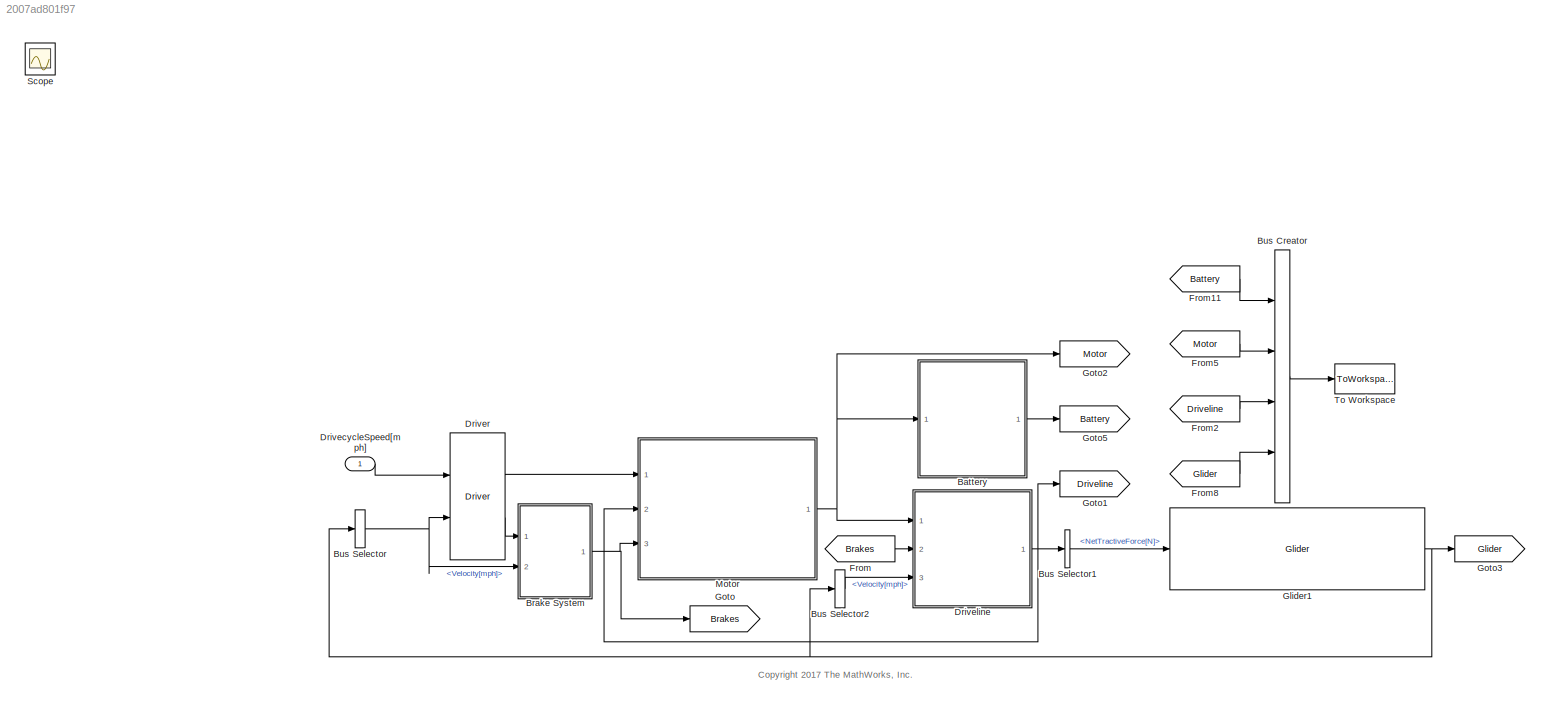
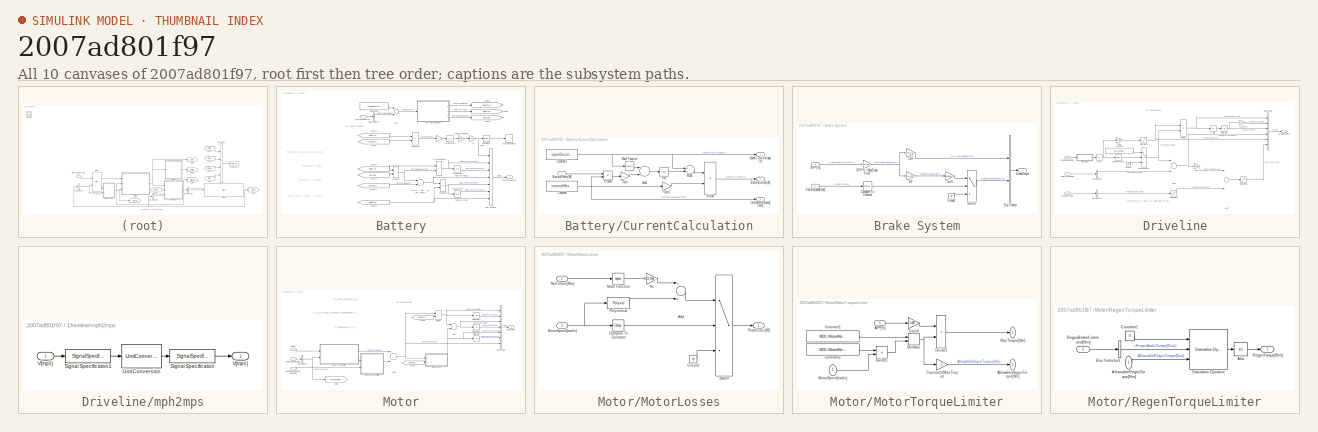
[diagram: thumbnail index - all 10 canvases of the model, root first then tree order]
MODEL slx_2007ad801f97
KIND model
CONFIG AbsTol = auto
CONFIG EnableMultiTasking = on
CONFIG FixedStep = .1
CONFIG MaxStep = auto
CONFIG MinStep = auto
CONFIG PostLoadFcn = addpath('ImagesBEV')\n\nBEVDir = pwd;\n\ncd ..\;\nSimulinkDir = pwd;\naddpath(SimulinkDir);\n\ncd(BEVDir);
CONFIG RelTol = 1e-3
CONFIG SampleTimeConstraint = Unconstrained
CONFIG Solver = ode4
CONFIG SolverName = ode4
CONFIG StartTime = 0.0
CONFIG StopFcn = MotorNetTorque = results.Motor.MotorNetTorque_Nm_;\nSOC = results.Battery.SOC___;\nBatteryPowerAtTerminals = results.Battery.BatteryPowerAtTerminals_W_;\nVehicleSpeed = results.Glider.Velocity_mph_;\n\nfigure\nscatter(VehicleSpeed.get.Data(:),MotorNetTorque.get.Data(:),'.')\ngrid on\nbox on\ntitle('Motor Torque vs. Vehicle Speed')\nxlabel('Vehicle Speed, V (mph)')\nylabel('Motor Torque, Tm (Nm)')\n\nfigure\nsca...<+360ch>
CONFIG StopTime = TimeUS06
WORKSPACE source: mxarray member
WORKSPACE AccessoryLoad = 600
WORKSPACE C_ref = 600
WORKSPACE DrCycles: object (value not decoded)
WORKSPACE K = 1.04716227018
WORKSPACE Kc_ref = 0.12
WORKSPACE Ki_ref = 0.01
WORKSPACE Kw_ref = 1.2e-05
WORKSPACE MDL: object (value not decoded)
WORKSPACE T_max = 500
WORKSPACE T_ref = 300
WORKSPACE TimeHWFET = 765
WORKSPACE TimeUDDS = 1372
WORKSPACE TimeUS06 = 596
WORKSPACE aeroDragCoeff = 0.38
WORKSPACE airDensity = 1.23
WORKSPACE energyCapacity = 12.6
WORKSPACE frontArea = 2.1
WORKSPACE gravity = 9.81
WORKSPACE inclinationAngle = 0
WORKSPACE inertialMassVeh = 2392
WORKSPACE initialSOC = 0.95
WORKSPACE internalResistance = 0.1
WORKSPACE massVeh = 2300
WORKSPACE openCircuitVoltage = 340
WORKSPACE rollingResistCoeff = 0.01
WORKSPACE w_max = 524
WORKSPACE w_ref = 834
WORKSPACE wheelRadius = 0.34
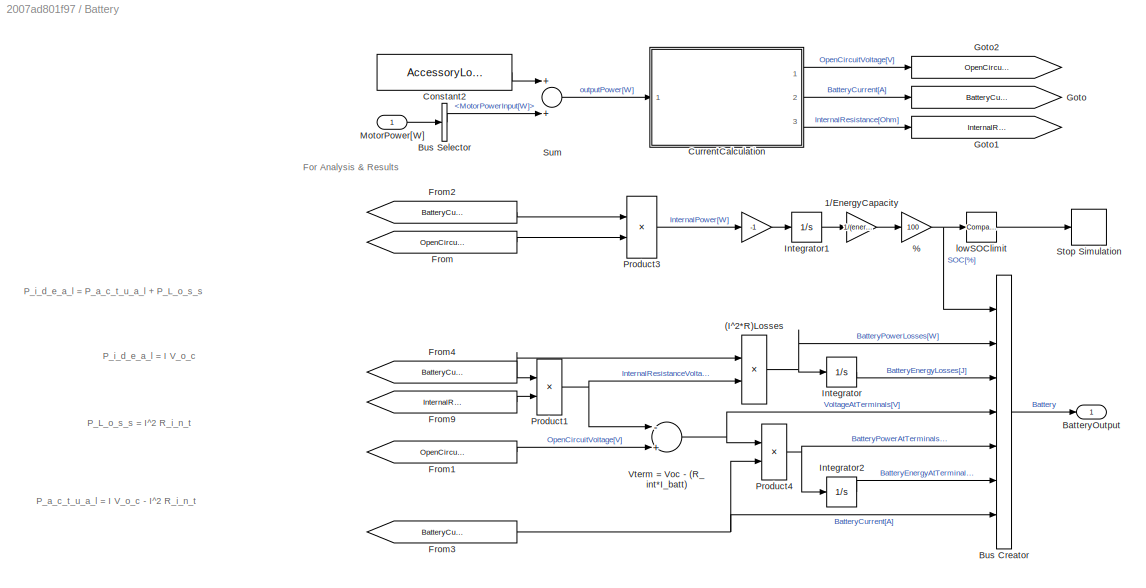
BLOCK [SubSystem] Battery
  Ports = [1, 1]
  RequestExecContextInheritance = off
BLOCK [Gain] Battery/ 
  Gain = -1
  OutDataTypeStr = Inherit: Inherit via internal rule
  ParamDataTypeStr = Inherit: Inherit via internal rule
  SaturateOnIntegerOverflow = off
BLOCK [Gain] Battery/%
  Gain = 100
  OutDataTypeStr = Inherit: Inherit via internal rule
  ParamDataTypeStr = Inherit: Inherit via internal rule
  SaturateOnIntegerOverflow = off
BLOCK [Product] Battery/(I^2*R)Losses
  InputSameDT = off
  OutDataTypeStr = Inherit: Inherit via internal rule
  Ports = [2, 1]
  SaturateOnIntegerOverflow = off
BLOCK [Gain] Battery/1//EnergyCapacity
  Gain = 1/(energyCapacity*3600*1000)
  OutDataTypeStr = Inherit: Inherit via internal rule
  ParamDataTypeStr = Inherit: Inherit via internal rule
  SaturateOnIntegerOverflow = off
BLOCK [Outport] Battery/BatteryOutput
  IconDisplay = Port number
  VectorParamsAs1DForOutWhenUnconnected = off
BLOCK [BusCreator] Battery/Bus Creator
  DisplayOption = bar
  InheritFromInputs = on
  Inputs = 7
  Ports = [7, 1]
BLOCK [BusSelector] Battery/Bus Selector
  OutputAsBus = off
  OutputSignals = MotorPowerInput[W]
  Ports = [1, 1]
BLOCK [Constant] Battery/Constant2
  Value = AccessoryLoad
BLOCK [SubSystem] Battery/CurrentCalculation
  Ports = [1, 3]
  RequestExecContextInheritance = off
BLOCK [Sum] Battery/CurrentCalculation/Add
  InputSameDT = off
  Inputs = +-
  OutDataTypeStr = Inherit: Inherit via internal rule
  Ports = [2, 1]
  SaturateOnIntegerOverflow = off
BLOCK [Sum] Battery/CurrentCalculation/Add1
  InputSameDT = off
  Inputs = +-
  OutDataTypeStr = Inherit: Inherit via internal rule
  Ports = [2, 1]
  SaturateOnIntegerOverflow = off
BLOCK [Outport] Battery/CurrentCalculation/BatteryCurrent[A]
  IconDisplay = Port number
  Port = 2
  VectorParamsAs1DForOutWhenUnconnected = off
BLOCK [Inport] Battery/CurrentCalculation/BatteryPower[W]
  IconDisplay = Port number
BLOCK [Constant] Battery/CurrentCalculation/Constant
  Value = internalResistance
BLOCK [Constant] Battery/CurrentCalculation/Constant1
  Value = openCircuitVoltage
BLOCK [Product] Battery/CurrentCalculation/Divide
  InputSameDT = off
  Inputs = */
  OutDataTypeStr = Inherit: Inherit via internal rule
  Ports = [2, 1]
  RndMeth = Floor
  SaturateOnIntegerOverflow = off
BLOCK [Gain] Battery/CurrentCalculation/Gain
  Gain = 4
  OutDataTypeStr = Inherit: Inherit via internal rule
  ParamDataTypeStr = Inherit: Inherit via internal rule
  SaturateOnIntegerOverflow = off
BLOCK [Gain] Battery/CurrentCalculation/Gain1
  Gain = 2
  OutDataTypeStr = Inherit: Inherit via internal rule
  ParamDataTypeStr = Inherit: Inherit via internal rule
  SaturateOnIntegerOverflow = off
BLOCK [Outport] Battery/CurrentCalculation/InternalResistance[Ohm]
  IconDisplay = Port number
  Port = 3
  VectorParamsAs1DForOutWhenUnconnected = off
BLOCK [Math] Battery/CurrentCalculation/Math Function
  Operator = square
  Ports = [1, 1]
BLOCK [Outport] Battery/CurrentCalculation/OpenCircuitVoltage[V]
  IconDisplay = Port number
  VectorParamsAs1DForOutWhenUnconnected = off
BLOCK [Product] Battery/CurrentCalculation/Product
  InputSameDT = off
  OutDataTypeStr = Inherit: Inherit via internal rule
  Ports = [2, 1]
  SaturateOnIntegerOverflow = off
BLOCK [Sqrt] Battery/CurrentCalculation/Sqrt
BLOCK [From] Battery/From
  GotoTag = OpenCircuitVoltage_V
BLOCK [From] Battery/From1
  GotoTag = OpenCircuitVoltage_V
BLOCK [From] Battery/From2
  GotoTag = BatteryCurrent_A
BLOCK [From] Battery/From3
  GotoTag = BatteryCurrent_A
BLOCK [From] Battery/From4
  GotoTag = BatteryCurrent_A
BLOCK [From] Battery/From9
  GotoTag = InternalResistance_Ohm
BLOCK [Goto] Battery/Goto
  GotoTag = BatteryCurrent_A
BLOCK [Goto] Battery/Goto1
  GotoTag = InternalResistance_Ohm
BLOCK [Goto] Battery/Goto2
  GotoTag = OpenCircuitVoltage_V
BLOCK [Integrator] Battery/Integrator
  Ports = [1, 1]
  ZeroCross = off
BLOCK [Integrator] Battery/Integrator1
  InitialCondition = energyCapacity*3600*1000*initialSOC
  Ports = [1, 1]
  ZeroCross = off
BLOCK [Integrator] Battery/Integrator2
  Ports = [1, 1]
BLOCK [Inport] Battery/MotorPower[W]
  IconDisplay = Port number
BLOCK [Product] Battery/Product1
  InputSameDT = off
  OutDataTypeStr = Inherit: Inherit via internal rule
  Ports = [2, 1]
  SaturateOnIntegerOverflow = off
BLOCK [Product] Battery/Product3
  InputSameDT = off
  OutDataTypeStr = Inherit: Inherit via internal rule
  Ports = [2, 1]
  SaturateOnIntegerOverflow = off
BLOCK [Product] Battery/Product4
  InputSameDT = off
  OutDataTypeStr = Inherit: Inherit via internal rule
  Ports = [2, 1]
  SaturateOnIntegerOverflow = off
BLOCK [Stop] Battery/Stop Simulation
BLOCK [Sum] Battery/Sum
  InputSameDT = off
  OutDataTypeStr = Inherit: Inherit via internal rule
  Ports = [2, 1]
  SaturateOnIntegerOverflow = off
BLOCK [Sum] Battery/Vterm = Voc - (R_int*I_batt)
  InputSameDT = off
  Inputs = -+
  OutDataTypeStr = Inherit: Inherit via internal rule
  Ports = [2, 1]
  SaturateOnIntegerOverflow = off
BLOCK [Reference] Battery/lowSOClimit  REF=simulink/Logic and Bit
Operations/Compare
To Constant
  Ports = [1, 1]
  SourceBlock = simulink/Logic and Bit\nOperations/Compare\nTo Constant
  SourceProductBaseCode = SL
  SourceProductName = Simulink
  SourceType = Compare To Constant
BLOCK [SubSystem] Brake System
  Ports = [2, 1]
  RequestExecContextInheritance = off
BLOCK [Gain] Brake System/1-BF
  Gain = 1-MDL.BrakeSys.RegenFraction
  OutDataTypeStr = Inherit: Inherit via internal rule
  ParamDataTypeStr = Inherit: Inherit via internal rule
  SaturateOnIntegerOverflow = off
BLOCK [Gain] Brake System/BF
  Gain = MDL.BrakeSys.RegenFraction
  OutDataTypeStr = Inherit: Inherit via internal rule
  ParamDataTypeStr = Inherit: Inherit via internal rule
  SaturateOnIntegerOverflow = off
BLOCK [Gain] Brake System/BPP% * MaxBrakeForce
  Gain = MDL.BrakeSys.MaxBrakeForce/100
  OutDataTypeStr = Inherit: Inherit via internal rule
  ParamDataTypeStr = Inherit: Inherit via internal rule
  SaturateOnIntegerOverflow = off
BLOCK [Inport] Brake System/BPP[%]
  IconDisplay = Port number
BLOCK [Outport] Brake System/BrakeOutput
  IconDisplay = Port number
  VectorParamsAs1DForOutWhenUnconnected = off
BLOCK [BusCreator] Brake System/Bus Creator
  DisplayOption = bar
  InheritFromInputs = on
  Inputs = 2
  Ports = [2, 1]
BLOCK [Reference] Brake System/Compare To Constant  REF=simulink/Logic and Bit
Operations/Compare
To Constant
  Ports = [1, 1]
  SourceBlock = simulink/Logic and Bit\nOperations/Compare\nTo Constant
  SourceProductBaseCode = SL
  SourceProductName = Simulink
  SourceType = Compare To Constant
BLOCK [Ground] Brake System/Ground
BLOCK [Switch] Brake System/Switch
  Criteria = u2 ~= 0
  InputSameDT = off
  SaturateOnIntegerOverflow = off
BLOCK [Inport] Brake System/VehicleSpeed[mph]
  IconDisplay = Port number
  Port = 2
BLOCK [Gain] Brake System/rw//G
  Gain = wheelRadius/MDL.DrivelineModel.G
  OutDataTypeStr = Inherit: Inherit via internal rule
  ParamDataTypeStr = Inherit: Inherit via internal rule
  SaturateOnIntegerOverflow = off
BLOCK [BusCreator] Bus Creator
  DisplayOption = bar
  InheritFromInputs = on
  Inputs = 4
  Ports = [4, 1]
BLOCK [BusSelector] Bus Selector
  OutputAsBus = off
  OutputSignals = Velocity[mph]
  Ports = [1, 1]
BLOCK [BusSelector] Bus Selector1
  OutputAsBus = off
  OutputSignals = NetTractiveForce[N]
  Ports = [1, 1]
BLOCK [BusSelector] Bus Selector2
  OutputAsBus = off
  OutputSignals = Velocity[mph]
  Ports = [1, 1]
BLOCK [Inport] DrivecycleSpeed[mph]
  IconDisplay = Port number
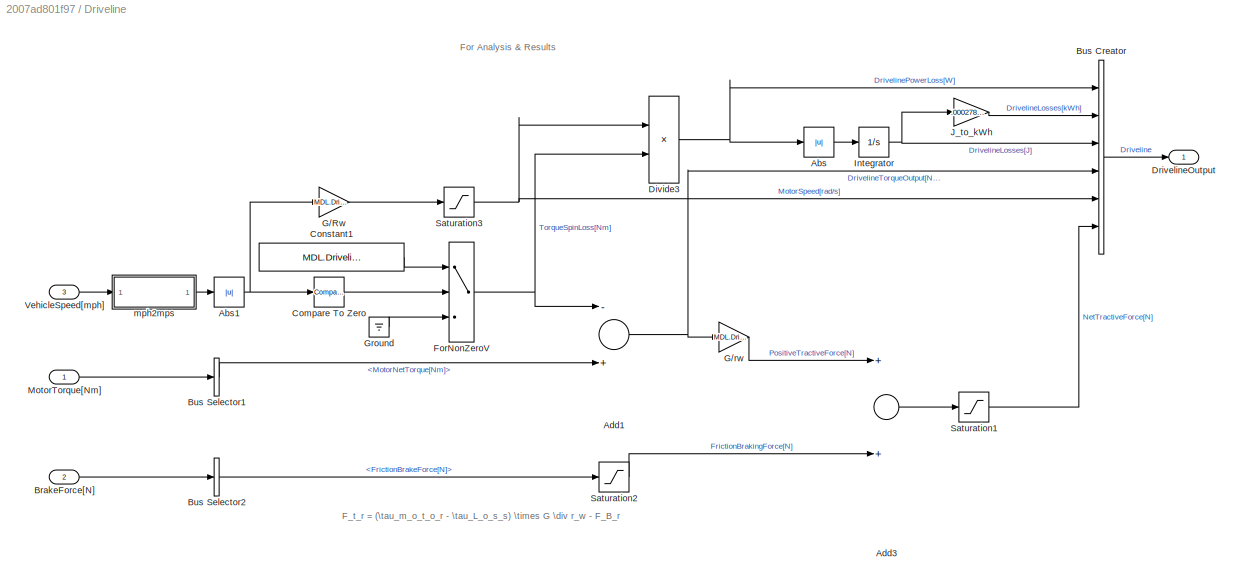
BLOCK [SubSystem] Driveline
  Ports = [3, 1]
  RequestExecContextInheritance = off
BLOCK [Abs] Driveline/Abs
  SaturateOnIntegerOverflow = off
  ZeroCross = off
BLOCK [Abs] Driveline/Abs1
  SaturateOnIntegerOverflow = off
  ZeroCross = off
BLOCK [Sum] Driveline/Add1
  InputSameDT = off
  Inputs = -+
  OutDataTypeStr = Inherit: Inherit via internal rule
  Ports = [2, 1]
  SaturateOnIntegerOverflow = off
BLOCK [Sum] Driveline/Add3
  InputSameDT = off
  OutDataTypeStr = Inherit: Inherit via internal rule
  Ports = [2, 1]
  SaturateOnIntegerOverflow = off
BLOCK [Inport] Driveline/BrakeForce[N]
  IconDisplay = Port number
  Port = 2
BLOCK [BusCreator] Driveline/Bus Creator
  DisplayOption = bar
  InheritFromInputs = on
  Inputs = 6
  Ports = [6, 1]
BLOCK [BusSelector] Driveline/Bus Selector1
  OutputAsBus = off
  OutputSignals = MotorNetTorque[Nm]
  Ports = [1, 1]
BLOCK [BusSelector] Driveline/Bus Selector2
  OutputAsBus = off
  OutputSignals = FrictionBrakeForce[N]
  Ports = [1, 1]
BLOCK [Reference] Driveline/Compare To Zero  REF=simulink/Logic and Bit
Operations/Compare
To Zero
  Ports = [1, 1]
  SourceBlock = simulink/Logic and Bit\nOperations/Compare\nTo Zero
  SourceProductBaseCode = SL
  SourceProductName = Simulink
  SourceType = Compare To Zero
BLOCK [Constant] Driveline/Constant1
  Value = MDL.DrivelineModel.Spinloss
BLOCK [Product] Driveline/Divide3
  InputSameDT = off
  Inputs = **
  OutDataTypeStr = Inherit: Inherit via internal rule
  Ports = [2, 1]
  RndMeth = Floor
  SaturateOnIntegerOverflow = off
BLOCK [Outport] Driveline/DrivelineOutput
  IconDisplay = Port number
  VectorParamsAs1DForOutWhenUnconnected = off
BLOCK [Switch] Driveline/ForNonZeroV
  Criteria = u2 ~= 0
  InputSameDT = off
  SaturateOnIntegerOverflow = off
  ZeroCross = off
BLOCK [Gain] Driveline/G//Rw
  Gain = MDL.DrivelineModel.G/wheelRadius
  OutDataTypeStr = Inherit: Inherit via internal rule
  ParamDataTypeStr = Inherit: Inherit via internal rule
  SaturateOnIntegerOverflow = off
BLOCK [Gain] Driveline/G//rw
  Gain = MDL.DrivelineModel.G/wheelRadius
  OutDataTypeStr = Inherit: Inherit via internal rule
  ParamDataTypeStr = Inherit: Inherit via internal rule
  SaturateOnIntegerOverflow = off
BLOCK [Ground] Driveline/Ground
BLOCK [Integrator] Driveline/Integrator
  Ports = [1, 1]
  ZeroCross = off
BLOCK [Gain] Driveline/J_to_kWh
  Gain = .000278/1000
  OutDataTypeStr = Inherit: Inherit via internal rule
  ParamDataTypeStr = Inherit: Inherit via internal rule
  SaturateOnIntegerOverflow = off
BLOCK [Inport] Driveline/MotorTorque[Nm]
  IconDisplay = Port number
BLOCK [Saturate] Driveline/Saturation1
  InputPortMap = u0
  LowerLimit = -10000
  Ports = [1, 1]
  UpperLimit = 5000
  ZeroCross = off
BLOCK [Saturate] Driveline/Saturation2
  InputPortMap = u0
  LowerLimit = -10000
  Ports = [1, 1]
  UpperLimit = 0
  ZeroCross = off
BLOCK [Saturate] Driveline/Saturation3
  InputPortMap = u0
  LowerLimit = 0.00001
  Ports = [1, 1]
  UpperLimit = inf
  ZeroCross = off
BLOCK [Inport] Driveline/VehicleSpeed[mph]
  IconDisplay = Port number
  Port = 3
BLOCK [SubSystem] Driveline/mph2mps
  Ports = [1, 1]
  RequestExecContextInheritance = off
BLOCK [SignalSpecification] Driveline/mph2mps/Signal Specification
  Unit = m/s
BLOCK [SignalSpecification] Driveline/mph2mps/Signal Specification1
  Unit = mile/hr
BLOCK [UnitConversion] Driveline/mph2mps/Unit Conversion
BLOCK [Inport] Driveline/mph2mps/V[mph]
  IconDisplay = Port number
BLOCK [Outport] Driveline/mph2mps/V[mps]
  IconDisplay = Port number
  VectorParamsAs1DForOutWhenUnconnected = off
BLOCK [Reference] Driver  REF=Driver_Glider_Library/Driver
  Ports = [2, 2]
  SourceBlock = Driver_Glider_Library/Driver
BLOCK [From] From
  GotoTag = Brakes
BLOCK [From] From11
  GotoTag = Battery
BLOCK [From] From2
  GotoTag = Driveline
BLOCK [From] From5
  GotoTag = Motor
BLOCK [From] From8
  GotoTag = Glider
BLOCK [Reference] Glider1  REF=Driver_Glider_Library/Glider
  Ports = [1, 1]
  SourceBlock = Driver_Glider_Library/Glider
BLOCK [Goto] Goto
  GotoTag = Brakes
BLOCK [Goto] Goto1
  GotoTag = Driveline
BLOCK [Goto] Goto2
  GotoTag = Motor
BLOCK [Goto] Goto3
  GotoTag = Glider
BLOCK [Goto] Goto5
  GotoTag = Battery
BLOCK [SubSystem] Motor
  Ports = [3, 1]
  RequestExecContextInheritance = off
BLOCK [Inport] Motor/APP[%]
  IconDisplay = Port number
BLOCK [Sum] Motor/Add2
  InputSameDT = off
  Inputs = +-
  OutDataTypeStr = Inherit: Inherit via internal rule
  Ports = [2, 1]
  SaturateOnIntegerOverflow = off
BLOCK [Sum] Motor/Add3
  InputSameDT = off
  OutDataTypeStr = Inherit: Inherit via internal rule
  Ports = [2, 1]
  SaturateOnIntegerOverflow = off
BLOCK [BusCreator] Motor/Bus Creator
  DisplayOption = bar
  InheritFromInputs = on
  Inputs = 7
  Ports = [7, 1]
BLOCK [BusSelector] Motor/Bus Selector
  OutputAsBus = off
  OutputSignals = MotorSpeed[rad/s]
  Ports = [1, 1]
BLOCK [Product] Motor/Divide4
  InputSameDT = off
  Inputs = **
  OutDataTypeStr = Inherit: Inherit via internal rule
  Ports = [2, 1]
  RndMeth = Floor
  SaturateOnIntegerOverflow = off
BLOCK [From] Motor/From
  GotoTag = MotorSpeed_radps
BLOCK [From] Motor/From1
  GotoTag = MotorSpeed_radps
BLOCK [Goto] Motor/Goto
  GotoTag = MotorSpeed_radps
BLOCK [Integrator] Motor/Integrator
  Ports = [1, 1]
  ZeroCross = off
BLOCK [Integrator] Motor/Integrator1
  Ports = [1, 1]
  ZeroCross = off
BLOCK [Integrator] Motor/Integrator2
  Ports = [1, 1]
  ZeroCross = off
BLOCK [SubSystem] Motor/MotorLosses
  Ports = [2, 1]
  RequestExecContextInheritance = off
BLOCK [Sum] Motor/MotorLosses/Add
  InputSameDT = off
  OutDataTypeStr = Inherit: Inherit via internal rule
  Ports = [2, 1]
  SaturateOnIntegerOverflow = off
BLOCK [Reference] Motor/MotorLosses/Compare To Constant  REF=simulink/Logic and Bit
Operations/Compare
To Constant
  Ports = [1, 1]
  SourceBlock = simulink/Logic and Bit\nOperations/Compare\nTo Constant
  SourceProductBaseCode = SL
  SourceProductName = Simulink
  SourceType = Compare To Constant
BLOCK [Ground] Motor/MotorLosses/Ground
BLOCK [Gain] Motor/MotorLosses/Kc
  Gain = MDL.MotorModel.kc
  OutDataTypeStr = Inherit: Inherit via internal rule
  ParamDataTypeStr = Inherit: Inherit via internal rule
  SaturateOnIntegerOverflow = off
BLOCK [Math] Motor/MotorLosses/Math Function
  Operator = square
  Ports = [1, 1]
BLOCK [Inport] Motor/MotorLosses/MotorSpeed[rad//s]
  IconDisplay = Port number
  Port = 2
BLOCK [Inport] Motor/MotorLosses/NetTorque[Nm]
  IconDisplay = Port number
BLOCK [Polyval] Motor/MotorLosses/Polynomial
  Coefs = [MDL.MotorModel.kw , 0 ,MDL.MotorModel.ki, MDL.MotorModel.C]
BLOCK [Outport] Motor/MotorLosses/PowerLoss[W]
  IconDisplay = Port number
  VectorParamsAs1DForOutWhenUnconnected = off
BLOCK [Switch] Motor/MotorLosses/Switch
  Criteria = u2 ~= 0
  InputSameDT = off
  SaturateOnIntegerOverflow = off
  ZeroCross = off
BLOCK [Outport] Motor/MotorOutput
  IconDisplay = Port number
  VectorParamsAs1DForOutWhenUnconnected = off
BLOCK [Inport] Motor/MotorSpeed[rad//s]
  IconDisplay = Port number
  Port = 2
BLOCK [SubSystem] Motor/MotorTorqueLimiter
  Ports = [2, 2]
  RequestExecContextInheritance = off
BLOCK [Inport] Motor/MotorTorqueLimiter/APP[%]
  IconDisplay = Port number
BLOCK [Outport] Motor/MotorTorqueLimiter/AllowableRegenTorque[Nm]
  IconDisplay = Port number
  Port = 2
  VectorParamsAs1DForOutWhenUnconnected = off
BLOCK [Constant] Motor/MotorTorqueLimiter/Constant1
  Value = MDL.MotorModel.MaxTrqOut
BLOCK [Constant] Motor/MotorTorqueLimiter/Constant2
  Value = MDL.MotorModel.MaxPwrOut
BLOCK [Product] Motor/MotorTorqueLimiter/Divide1
  InputSameDT = off
  Inputs = */
  OutDataTypeStr = Inherit: Inherit via internal rule
  Ports = [2, 1]
  RndMeth = Floor
  SaturateOnIntegerOverflow = off
BLOCK [Product] Motor/MotorTorqueLimiter/Divide3
  InputSameDT = off
  Inputs = **
  OutDataTypeStr = Inherit: Inherit via internal rule
  Ports = [2, 1]
  RndMeth = Floor
  SaturateOnIntegerOverflow = off
BLOCK [Gain] Motor/MotorTorqueLimiter/FractionOfMaxTorque
  Gain = -.5
  OutDataTypeStr = Inherit: Inherit via internal rule
  ParamDataTypeStr = Inherit: Inherit via internal rule
  SaturateOnIntegerOverflow = off
BLOCK [Gain] Motor/MotorTorqueLimiter/Gain4
  Gain = 1/100
  OutDataTypeStr = Inherit: Inherit via internal rule
  ParamDataTypeStr = Inherit: Inherit via internal rule
  SaturateOnIntegerOverflow = off
BLOCK [Outport] Motor/MotorTorqueLimiter/MaxTorque[Nm]
  IconDisplay = Port number
  VectorParamsAs1DForOutWhenUnconnected = off
BLOCK [MinMax] Motor/MotorTorqueLimiter/MinMax
  InputSameDT = off
  Inputs = 2
  Ports = [2, 1]
  SaturateOnIntegerOverflow = off
BLOCK [Inport] Motor/MotorTorqueLimiter/MotorSpeed[rad//s]
  IconDisplay = Port number
  Port = 2
BLOCK [Inport] Motor/RegenBrakingCommand[Nm]
  IconDisplay = Port number
  Port = 3
BLOCK [SubSystem] Motor/RegenTorqueLimiter
  Ports = [2, 1]
  RequestExecContextInheritance = off
BLOCK [Abs] Motor/RegenTorqueLimiter/Abs
  SaturateOnIntegerOverflow = off
BLOCK [Inport] Motor/RegenTorqueLimiter/AllowableRegenTorque[Nm]
  IconDisplay = Port number
BLOCK [BusSelector] Motor/RegenTorqueLimiter/Bus Selector1
  OutputAsBus = off
  OutputSignals = RegenBrakeTorque[Nm]
  Ports = [1, 1]
BLOCK [Constant] Motor/RegenTorqueLimiter/Constant1
  Value = 0
BLOCK [Inport] Motor/RegenTorqueLimiter/RegenBrakeCommand[Nm]
  IconDisplay = Port number
  Port = 2
BLOCK [Outport] Motor/RegenTorqueLimiter/RegenTorque[Nm]
  IconDisplay = Port number
  VectorParamsAs1DForOutWhenUnconnected = off
BLOCK [Reference] Motor/RegenTorqueLimiter/Saturation Dynamic  REF=simulink/Discontinuities/Saturation
Dynamic
  Ports = [3, 1]
  SourceBlock = simulink/Discontinuities/Saturation\nDynamic
  SourceProductBaseCode = SL
  SourceProductName = Simulink
  SourceType = Saturation Dynamic
BLOCK [Scope] Scope
  Floating = off
  IOType = viewer
  NumInputPorts = 1
  Ports = []
  ScopeSpecificationString = Simulink.scopes.TimeScopeBlockCfg('CurrentConfiguration', extmgr.ConfigurationSet(extmgr.Configuration('Core','General UI',true),extmgr.Configuration('Core','Source UI',true),extmgr.Configuration('Sources','WiredSimulink',true),extmgr.Configuration('Visuals','Time Domain',true,'SerializedDisplays',{struct('MinYLimReal','-10.07672','MaxYLimReal','90.47015','YLabelReal','','MinYLimMag','0.00000','Ma...<+1439ch>
BLOCK [ToWorkspace] To Workspace
  FixptAsFi = on
  MaxDataPoints = inf
  Ports = [1]
  SampleTime = -1
  SaveFormat = Timeseries
  VariableName = results
ANNOTATION (root): <copyright redacted>
ANNOTATION Battery: P_L_o_s_s = I^2 R_i_n_t
ANNOTATION Battery: For Analysis & Results
ANNOTATION Battery: P_a_c_t_u_a_l = I V_o_c - I^2 R_i_n_t
ANNOTATION Battery: P_i_d_e_a_l = I V_o_c
ANNOTATION Battery: P_i_d_e_a_l = P_a_c_t_u_a_l + P_L_o_s_s
ANNOTATION Driveline: F_t_r = (\tau_m_o_t_o_r - \tau_L_o_s_s) \times G \div r_w - F_B_r
ANNOTATION Driveline: For Analysis & Results
ANNOTATION Motor: For Analysis & Results
ANNOTATION Motor: P_L_o_s_s = k_c \tau ^2 + k_i \omega + k_\omega \omega ^3 + C
ANNOTATION Motor: P_i_n = \tau \omega + P_L_o_s_s
ANNOTATION Motor: P_m_o_t = \tau_m_o_t \omega_m_o_t
LINE Battery/ :1 -> Battery/Integrator1:1
NET Battery/%:1 -> Battery/Bus Creator:1, Battery/lowSOClimit:1
NET Battery/(I^2*R)Losses:1 -> Battery/Bus Creator:2, Battery/Integrator:1
LINE Battery/1//EnergyCapacity:1 -> Battery/%:1
LINE Battery/Bus Creator:1 -> Battery/BatteryOutput:1
LINE Battery/Bus Selector:1 -> Battery/Sum:2
LINE Battery/Constant2:1 -> Battery/Sum:1
LINE Battery/CurrentCalculation/Add1:1 -> Battery/CurrentCalculation/Divide:1
LINE Battery/CurrentCalculation/Add:1 -> Battery/CurrentCalculation/Sqrt:1
LINE Battery/CurrentCalculation/BatteryPower[W]:1 -> Battery/CurrentCalculation/Product:1
NET Battery/CurrentCalculation/Constant1:1 -> Battery/CurrentCalculation/Add1:1, Battery/CurrentCalculation/Math Function:1, Battery/CurrentCalculation/OpenCircuitVoltage[V]:1
NET Battery/CurrentCalculation/Constant:1 -> Battery/CurrentCalculation/Gain1:1, Battery/CurrentCalculation/InternalResistance[Ohm]:1, Battery/CurrentCalculation/Product:2
LINE Battery/CurrentCalculation/Divide:1 -> Battery/CurrentCalculation/BatteryCurrent[A]:1
LINE Battery/CurrentCalculation/Gain1:1 -> Battery/CurrentCalculation/Divide:2
LINE Battery/CurrentCalculation/Gain:1 -> Battery/CurrentCalculation/Add:2
LINE Battery/CurrentCalculation/Math Function:1 -> Battery/CurrentCalculation/Add:1
LINE Battery/CurrentCalculation/Product:1 -> Battery/CurrentCalculation/Gain:1
LINE Battery/CurrentCalculation/Sqrt:1 -> Battery/CurrentCalculation/Add1:2
LINE Battery/CurrentCalculation:1 -> Battery/Goto2:1
LINE Battery/CurrentCalculation:2 -> Battery/Goto:1
LINE Battery/CurrentCalculation:3 -> Battery/Goto1:1
LINE Battery/From1:1 -> Battery/Vterm = Voc - (R_int*I_batt):2
LINE Battery/From2:1 -> Battery/Product3:1
NET Battery/From3:1 -> Battery/Bus Creator:7, Battery/Product4:2
NET Battery/From4:1 -> Battery/(I^2*R)Losses:1, Battery/Product1:1
LINE Battery/From9:1 -> Battery/Product1:2
LINE Battery/From:1 -> Battery/Product3:2
LINE Battery/Integrator1:1 -> Battery/1//EnergyCapacity:1
LINE Battery/Integrator2:1 -> Battery/Bus Creator:6
LINE Battery/Integrator:1 -> Battery/Bus Creator:3
LINE Battery/MotorPower[W]:1 -> Battery/Bus Selector:1
NET Battery/Product1:1 -> Battery/(I^2*R)Losses:2, Battery/Vterm = Voc - (R_int*I_batt):1
LINE Battery/Product3:1 -> Battery/ :1
NET Battery/Product4:1 -> Battery/Bus Creator:5, Battery/Integrator2:1
LINE Battery/Sum:1 -> Battery/CurrentCalculation:1
NET Battery/Vterm = Voc - (R_int*I_batt):1 -> Battery/Bus Creator:4, Battery/Product4:1
LINE Battery/lowSOClimit:1 -> Battery/Stop Simulation:1
LINE Battery:1 -> Goto5:1
LINE Brake System/1-BF:1 -> Brake System/Bus Creator:1
LINE Brake System/BF:1 -> Brake System/rw//G:1
NET Brake System/BPP% * MaxBrakeForce:1 -> Brake System/1-BF:1, Brake System/BF:1
LINE Brake System/BPP[%]:1 -> Brake System/BPP% * MaxBrakeForce:1
LINE Brake System/Bus Creator:1 -> Brake System/BrakeOutput:1
LINE Brake System/Compare To Constant:1 -> Brake System/Switch:2
LINE Brake System/Ground:1 -> Brake System/Switch:3
LINE Brake System/Switch:1 -> Brake System/Bus Creator:2
LINE Brake System/VehicleSpeed[mph]:1 -> Brake System/Compare To Constant:1
LINE Brake System/rw//G:1 -> Brake System/Switch:1
NET Brake System:1 -> Goto:1, Motor:3
LINE Bus Creator:1 -> To Workspace:1
LINE Bus Selector1:1 -> Glider1:1
LINE Bus Selector2:1 -> Driveline:3
NET Bus Selector:1 -> Brake System:2, Driver:2
LINE DrivecycleSpeed[mph]:1 -> Driver:1
NET Driveline/Abs1:1 -> Driveline/Compare To Zero:1, Driveline/G//Rw:1
LINE Driveline/Abs:1 -> Driveline/Integrator:1
NET Driveline/Add1:1 -> Driveline/Bus Creator:4, Driveline/G//rw:1
LINE Driveline/Add3:1 -> Driveline/Saturation1:1
LINE Driveline/BrakeForce[N]:1 -> Driveline/Bus Selector2:1
LINE Driveline/Bus Creator:1 -> Driveline/DrivelineOutput:1
LINE Driveline/Bus Selector1:1 -> Driveline/Add1:2
LINE Driveline/Bus Selector2:1 -> Driveline/Saturation2:1
LINE Driveline/Compare To Zero:1 -> Driveline/ForNonZeroV:2
LINE Driveline/Constant1:1 -> Driveline/ForNonZeroV:1
NET Driveline/Divide3:1 -> Driveline/Abs:1, Driveline/Bus Creator:1
NET Driveline/ForNonZeroV:1 -> Driveline/Add1:1, Driveline/Divide3:2
LINE Driveline/G//Rw:1 -> Driveline/Saturation3:1
LINE Driveline/G//rw:1 -> Driveline/Add3:1
LINE Driveline/Ground:1 -> Driveline/ForNonZeroV:3
NET Driveline/Integrator:1 -> Driveline/Bus Creator:3, Driveline/J_to_kWh:1
LINE Driveline/J_to_kWh:1 -> Driveline/Bus Creator:2
LINE Driveline/MotorTorque[Nm]:1 -> Driveline/Bus Selector1:1
LINE Driveline/Saturation1:1 -> Driveline/Bus Creator:6
LINE Driveline/Saturation2:1 -> Driveline/Add3:2
NET Driveline/Saturation3:1 -> Driveline/Bus Creator:5, Driveline/Divide3:1
LINE Driveline/VehicleSpeed[mph]:1 -> Driveline/mph2mps:1
LINE Driveline/mph2mps/Signal Specification1:1 -> Driveline/mph2mps/Unit Conversion:1
LINE Driveline/mph2mps/Signal Specification:1 -> Driveline/mph2mps/V[mps]:1
LINE Driveline/mph2mps/Unit Conversion:1 -> Driveline/mph2mps/Signal Specification:1
LINE Driveline/mph2mps/V[mph]:1 -> Driveline/mph2mps/Signal Specification1:1
LINE Driveline/mph2mps:1 -> Driveline/Abs1:1
NET Driveline:1 -> Bus Selector1:1, Goto1:1, Motor:2
LINE Driver:1 -> Motor:1
LINE Driver:2 -> Brake System:1
LINE From11:1 -> Bus Creator:1
LINE From2:1 -> Bus Creator:3
LINE From5:1 -> Bus Creator:2
LINE From8:1 -> Bus Creator:4
LINE From:1 -> Driveline:2
NET Glider1:1 -> Bus Selector2:1, Bus Selector:1, Goto3:1
LINE Motor/APP[%]:1 -> Motor/MotorTorqueLimiter:1
NET Motor/Add2:1 -> Motor/Bus Creator:7, Motor/Divide4:1, Motor/MotorLosses:1
NET Motor/Add3:1 -> Motor/Bus Creator:3, Motor/Integrator1:1
LINE Motor/Bus Creator:1 -> Motor/MotorOutput:1
NET Motor/Bus Selector:1 -> Motor/Goto:1, Motor/MotorTorqueLimiter:2
NET Motor/Divide4:1 -> Motor/Add3:1, Motor/Bus Creator:1, Motor/Integrator2:1
LINE Motor/From1:1 -> Motor/Divide4:2
LINE Motor/From:1 -> Motor/MotorLosses:2
LINE Motor/Integrator1:1 -> Motor/Bus Creator:4
LINE Motor/Integrator2:1 -> Motor/Bus Creator:2
LINE Motor/Integrator:1 -> Motor/Bus Creator:6
LINE Motor/MotorLosses/Add:1 -> Motor/MotorLosses/Switch:1
LINE Motor/MotorLosses/Compare To Constant:1 -> Motor/MotorLosses/Switch:2
LINE Motor/MotorLosses/Ground:1 -> Motor/MotorLosses/Switch:3
LINE Motor/MotorLosses/Kc:1 -> Motor/MotorLosses/Add:1
LINE Motor/MotorLosses/Math Function:1 -> Motor/MotorLosses/Kc:1
NET Motor/MotorLosses/MotorSpeed[rad//s]:1 -> Motor/MotorLosses/Compare To Constant:1, Motor/MotorLosses/Polynomial:1
LINE Motor/MotorLosses/NetTorque[Nm]:1 -> Motor/MotorLosses/Math Function:1
LINE Motor/MotorLosses/Polynomial:1 -> Motor/MotorLosses/Add:2
LINE Motor/MotorLosses/Switch:1 -> Motor/MotorLosses/PowerLoss[W]:1
NET Motor/MotorLosses:1 -> Motor/Add3:2, Motor/Bus Creator:5, Motor/Integrator:1
LINE Motor/MotorSpeed[rad//s]:1 -> Motor/Bus Selector:1
LINE Motor/MotorTorqueLimiter/APP[%]:1 -> Motor/MotorTorqueLimiter/Gain4:1
LINE Motor/MotorTorqueLimiter/Constant1:1 -> Motor/MotorTorqueLimiter/MinMax:1
LINE Motor/MotorTorqueLimiter/Constant2:1 -> Motor/MotorTorqueLimiter/Divide1:1
LINE Motor/MotorTorqueLimiter/Divide1:1 -> Motor/MotorTorqueLimiter/MinMax:2
LINE Motor/MotorTorqueLimiter/Divide3:1 -> Motor/MotorTorqueLimiter/MaxTorque[Nm]:1
LINE Motor/MotorTorqueLimiter/FractionOfMaxTorque:1 -> Motor/MotorTorqueLimiter/AllowableRegenTorque[Nm]:1
LINE Motor/MotorTorqueLimiter/Gain4:1 -> Motor/MotorTorqueLimiter/Divide3:1
NET Motor/MotorTorqueLimiter/MinMax:1 -> Motor/MotorTorqueLimiter/Divide3:2, Motor/MotorTorqueLimiter/FractionOfMaxTorque:1
LINE Motor/MotorTorqueLimiter/MotorSpeed[rad//s]:1 -> Motor/MotorTorqueLimiter/Divide1:2
LINE Motor/MotorTorqueLimiter:1 -> Motor/Add2:1
LINE Motor/MotorTorqueLimiter:2 -> Motor/RegenTorqueLimiter:1
LINE Motor/RegenBrakingCommand[Nm]:1 -> Motor/RegenTorqueLimiter:2
LINE Motor/RegenTorqueLimiter/Abs:1 -> Motor/RegenTorqueLimiter/RegenTorque[Nm]:1
LINE Motor/RegenTorqueLimiter/AllowableRegenTorque[Nm]:1 -> Motor/RegenTorqueLimiter/Saturation Dynamic:3
LINE Motor/RegenTorqueLimiter/Bus Selector1:1 -> Motor/RegenTorqueLimiter/Saturation Dynamic:2
LINE Motor/RegenTorqueLimiter/Constant1:1 -> Motor/RegenTorqueLimiter/Saturation Dynamic:1
LINE Motor/RegenTorqueLimiter/RegenBrakeCommand[Nm]:1 -> Motor/RegenTorqueLimiter/Bus Selector1:1
LINE Motor/RegenTorqueLimiter/Saturation Dynamic:1 -> Motor/RegenTorqueLimiter/Abs:1
LINE Motor/RegenTorqueLimiter:1 -> Motor/Add2:2
NET Motor:1 -> Battery:1, Driveline:1, Goto2:1
note: NET lines group one-source signal fan-out (src -> all destinations, sorted); 1:1 wires keep LINE
